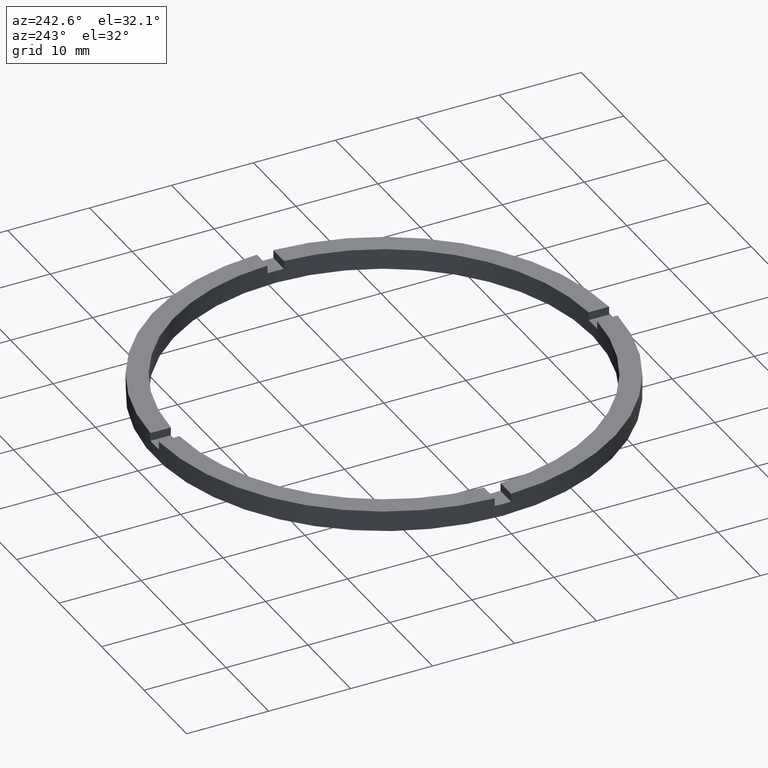
[diagram: clean part render]
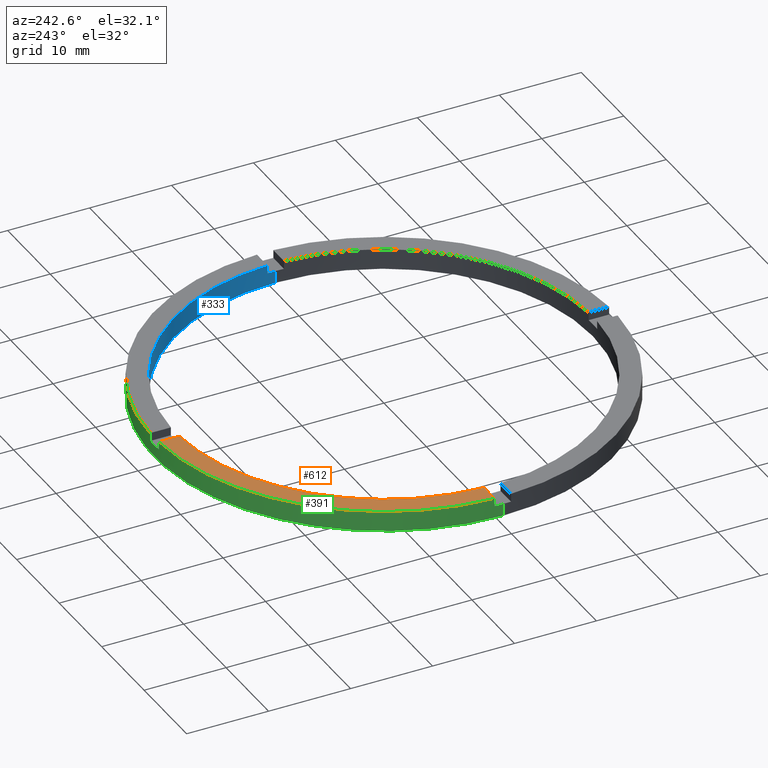
[diagram: same view with three faces highlighted in distinct colors, each labeled with its STEP entity id]
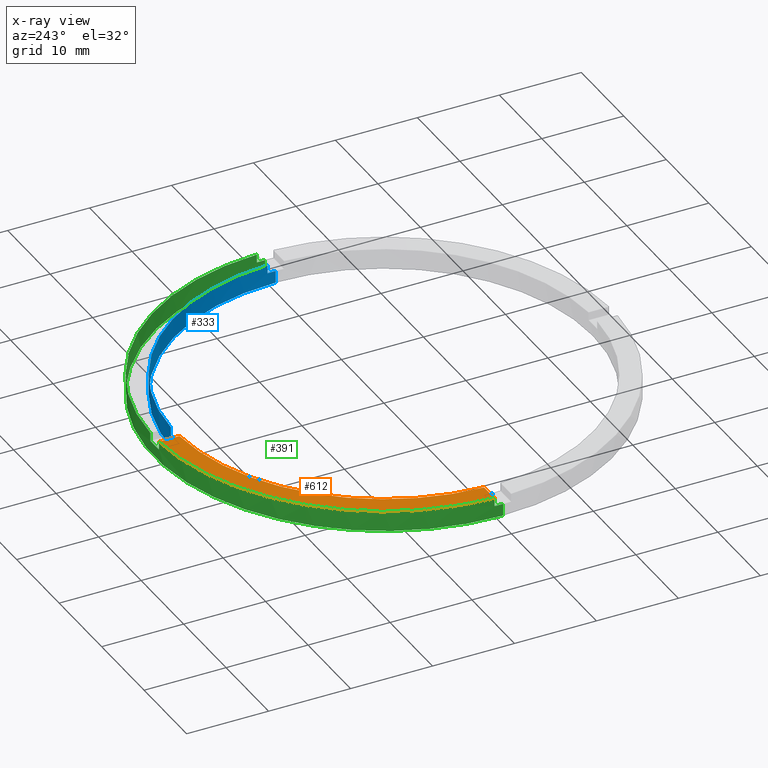
[diagram: x-ray of the same camera — body ghosted, the three highlighted faces saturated]
A machine part, auxiliary view with three faces highlighted in distinct colors.
The next image is the same camera in x-ray (body ghosted, the three faces saturated) — at least one of them is partly hidden behind the body in this view.
Their STEP definitions:

[orange] entity #612 — the highlighted planar face has unit normal (0, 0, 1).
#18 = VERTEX_POINT ( 'NONE', #433 ) ;
#42 = AXIS2_PLACEMENT_3D ( 'NONE', #439, #690, #152 ) ;
#99 = LINE ( 'NONE', #435, #623 ) ;
#103 = VERTEX_POINT ( 'NONE', #410 ) ;
#150 = EDGE_CURVE ( 'NONE', #103, #18, #99, .T. ) ;
#152 = DIRECTION ( 'NONE',  ( 1.000000000000000000, 0.000000000000000000, -0.000000000000000000 ) ) ;
#163 = EDGE_CURVE ( 'NONE', #18, #274, #635, .T. ) ;
#197 = PLANE ( 'NONE',  #42 ) ;
#274 = VERTEX_POINT ( 'NONE', #625 ) ;
#304 = DIRECTION ( 'NONE',  ( 1.000000000000000000, 0.000000000000000000, 0.000000000000000000 ) ) ;
#312 = CARTESIAN_POINT ( 'NONE',  ( -27.98213715926644696, 0.9999999999999731326, 2.500000000000000000 ) ) ;
#313 = VECTOR ( 'NONE', #588, 1000.000000000000000 ) ;
#320 = DIRECTION ( 'NONE',  ( 0.000000000000000000, 0.000000000000000000, 1.000000000000000000 ) ) ;
#337 = VERTEX_POINT ( 'NONE', #312 ) ;
#353 = ORIENTED_EDGE ( 'NONE', *, *, #163, .F. ) ;
#410 = CARTESIAN_POINT ( 'NONE',  ( -1.000000000000026423, 27.98213715926644340, 2.500000000000000000 ) ) ;
#433 = CARTESIAN_POINT ( 'NONE',  ( -1.000000000000026423, 25.48038461248181008, 2.500000000000000000 ) ) ;
#435 = CARTESIAN_POINT ( 'NONE',  ( -1.000000000000026423, 18.00000000000000355, 2.500000000000000000 ) ) ;
#439 = CARTESIAN_POINT ( 'NONE',  ( 0.000000000000000000, 0.000000000000000000, 2.500000000000000000 ) ) ;
#471 = ORIENTED_EDGE ( 'NONE', *, *, #649, .T. ) ;
#472 = ORIENTED_EDGE ( 'NONE', *, *, #150, .F. ) ;
#497 = ORIENTED_EDGE ( 'NONE', *, *, #565, .F. ) ;
#501 = CARTESIAN_POINT ( 'NONE',  ( 0.000000000000000000, 0.000000000000000000, 2.500000000000000000 ) ) ;
#551 = DIRECTION ( 'NONE',  ( 1.000000000000000000, 0.000000000000000000, 0.000000000000000000 ) ) ;
#556 = DIRECTION ( 'NONE',  ( -0.000000000000000000, -1.000000000000000000, -0.000000000000000000 ) ) ;
#565 = EDGE_CURVE ( 'NONE', #274, #337, #589, .T. ) ;
#566 = FACE_OUTER_BOUND ( 'NONE', #621, .T. ) ;
#576 = CIRCLE ( 'NONE', #628, 28.00000000000000000 ) ;
#588 = DIRECTION ( 'NONE',  ( -1.000000000000000000, -1.734723475976807341E-16, 0.000000000000000000 ) ) ;
#589 = LINE ( 'NONE', #668, #313 ) ;
#605 = DIRECTION ( 'NONE',  ( 0.000000000000000000, 0.000000000000000000, 1.000000000000000000 ) ) ;
#612 = ADVANCED_FACE ( 'NONE', ( #566 ), #197, .T. ) ;
#621 = EDGE_LOOP ( 'NONE', ( #472, #471, #497, #353 ) ) ;
#623 = VECTOR ( 'NONE', #556, 1000.000000000000000 ) ;
#625 = CARTESIAN_POINT ( 'NONE',  ( -25.48038461248181363, 0.9999999999999735767, 2.500000000000000000 ) ) ;
#628 = AXIS2_PLACEMENT_3D ( 'NONE', #633, #605, #304 ) ;
#633 = CARTESIAN_POINT ( 'NONE',  ( 0.000000000000000000, 0.000000000000000000, 2.500000000000000000 ) ) ;
#635 = CIRCLE ( 'NONE', #674, 25.50000000000000000 ) ;
#649 = EDGE_CURVE ( 'NONE', #103, #337, #576, .T. ) ;
#668 = CARTESIAN_POINT ( 'NONE',  ( -18.00000000000018474, 0.9999999999999749090, 2.500000000000000000 ) ) ;
#674 = AXIS2_PLACEMENT_3D ( 'NONE', #501, #320, #551 ) ;
#690 = DIRECTION ( 'NONE',  ( 0.000000000000000000, 0.000000000000000000, 1.000000000000000000 ) ) ;

[blue] entity #333 — the highlighted cylindrical surface (partial cylindrical patch) has radius 25.5 mm, axis along (-0, -0, -1).
#14 = EDGE_CURVE ( 'NONE', #252, #517, #709, .T. ) ;
#18 = VERTEX_POINT ( 'NONE', #433 ) ;
#19 = CARTESIAN_POINT ( 'NONE',  ( -25.50000000000000000, 0.000000000000000000, 2.500000000000000000 ) ) ;
#32 = VERTEX_POINT ( 'NONE', #650 ) ;
#35 = CARTESIAN_POINT ( 'NONE',  ( 0.9999999999999735767, 25.48038461248181363, 2.500000000000000000 ) ) ;
#57 = LINE ( 'NONE', #540, #68 ) ;
#68 = VECTOR ( 'NONE', #648, 1000.000000000000000 ) ;
#77 = CARTESIAN_POINT ( 'NONE',  ( 0.000000000000000000, 0.000000000000000000, 1.500000000000000000 ) ) ;
#78 = CARTESIAN_POINT ( 'NONE',  ( 25.50000000000000000, 3.122849337825750222E-15, 1.500000000000000000 ) ) ;
#83 = DIRECTION ( 'NONE',  ( 0.000000000000000000, 0.000000000000000000, 1.000000000000000000 ) ) ;
#89 = DIRECTION ( 'NONE',  ( -0.000000000000000000, -0.000000000000000000, -1.000000000000000000 ) ) ;
#91 = EDGE_CURVE ( 'NONE', #252, #453, #379, .T. ) ;
#97 = VERTEX_POINT ( 'NONE', #285 ) ;
#101 = CARTESIAN_POINT ( 'NONE',  ( 0.000000000000000000, 0.000000000000000000, 2.500000000000000000 ) ) ;
#112 = VECTOR ( 'NONE', #168, 1000.000000000000000 ) ;
#147 = AXIS2_PLACEMENT_3D ( 'NONE', #101, #334, #753 ) ;
#163 = EDGE_CURVE ( 'NONE', #18, #274, #635, .T. ) ;
#166 = EDGE_CURVE ( 'NONE', #706, #750, #350, .T. ) ;
#167 = DIRECTION ( 'NONE',  ( 1.000000000000000000, 0.000000000000000000, 0.000000000000000000 ) ) ;
#168 = DIRECTION ( 'NONE',  ( 0.000000000000000000, 0.000000000000000000, 1.000000000000000000 ) ) ;
#172 = CARTESIAN_POINT ( 'NONE',  ( 0.000000000000000000, 0.000000000000000000, 1.500000000000000000 ) ) ;
#182 = FACE_OUTER_BOUND ( 'NONE', #599, .T. ) ;
#187 = LINE ( 'NONE', #200, #707 ) ;
#194 = ORIENTED_EDGE ( 'NONE', *, *, #511, .F. ) ;
#200 = CARTESIAN_POINT ( 'NONE',  ( -25.48038461248181363, 0.9999999999999735767, 2.500000000000000000 ) ) ;
#201 = DIRECTION ( 'NONE',  ( 1.000000000000000000, 0.000000000000000000, 0.000000000000000000 ) ) ;
#210 = ORIENTED_EDGE ( 'NONE', *, *, #718, .F. ) ;
#211 = CARTESIAN_POINT ( 'NONE',  ( 0.000000000000000000, 0.000000000000000000, 2.500000000000000000 ) ) ;
#213 = ORIENTED_EDGE ( 'NONE', *, *, #91, .F. ) ;
#223 = CARTESIAN_POINT ( 'NONE',  ( 0.9999999999999735767, 25.48038461248181363, 2.500000000000000000 ) ) ;
#252 = VERTEX_POINT ( 'NONE', #538 ) ;
#255 = VERTEX_POINT ( 'NONE', #78 ) ;
#265 = EDGE_CURVE ( 'NONE', #255, #606, #626, .T. ) ;
#268 = DIRECTION ( 'NONE',  ( 0.000000000000000000, -0.000000000000000000, 1.000000000000000000 ) ) ;
#274 = VERTEX_POINT ( 'NONE', #625 ) ;
#277 = AXIS2_PLACEMENT_3D ( 'NONE', #77, #268, #507 ) ;
#281 = DIRECTION ( 'NONE',  ( 0.000000000000000000, 0.000000000000000000, 1.000000000000000000 ) ) ;
#283 = ORIENTED_EDGE ( 'NONE', *, *, #515, .T. ) ;
#285 = CARTESIAN_POINT ( 'NONE',  ( 25.48038461248181719, 0.9999999999998427924, 2.500000000000000000 ) ) ;
#296 = EDGE_CURVE ( 'NONE', #32, #274, #187, .T. ) ;
#307 = CIRCLE ( 'NONE', #411, 25.50000000000000000 ) ;
#316 = CARTESIAN_POINT ( 'NONE',  ( -1.000000000000026423, 25.48038461248181008, 1.500000000000000000 ) ) ;
#320 = DIRECTION ( 'NONE',  ( 0.000000000000000000, 0.000000000000000000, 1.000000000000000000 ) ) ;
#323 = VECTOR ( 'NONE', #454, 1000.000000000000000 ) ;
#333 = ADVANCED_FACE ( 'NONE', ( #182 ), #710, .F. ) ;
#334 = DIRECTION ( 'NONE',  ( -0.000000000000000000, -0.000000000000000000, -1.000000000000000000 ) ) ;
#336 = CIRCLE ( 'NONE', #684, 25.50000000000000000 ) ;
#344 = EDGE_CURVE ( 'NONE', #255, #371, #444, .T. ) ;
#346 = DIRECTION ( 'NONE',  ( 1.000000000000000000, 0.000000000000000000, 0.000000000000000000 ) ) ;
#348 = CARTESIAN_POINT ( 'NONE',  ( 25.50000000000000000, 3.122849337825750222E-15, 0.000000000000000000 ) ) ;
#350 = LINE ( 'NONE', #19, #646 ) ;
#371 = VERTEX_POINT ( 'NONE', #552 ) ;
#379 = LINE ( 'NONE', #35, #112 ) ;
#402 = DIRECTION ( 'NONE',  ( 0.000000000000000000, 0.000000000000000000, 1.000000000000000000 ) ) ;
#411 = AXIS2_PLACEMENT_3D ( 'NONE', #549, #83, #201 ) ;
#428 = CARTESIAN_POINT ( 'NONE',  ( 25.50000000000000000, 3.122849337825750222E-15, 2.500000000000000000 ) ) ;
#433 = CARTESIAN_POINT ( 'NONE',  ( -1.000000000000026423, 25.48038461248181008, 2.500000000000000000 ) ) ;
#434 = CARTESIAN_POINT ( 'NONE',  ( 25.48038461248181719, 0.9999999999998427924, 2.500000000000000000 ) ) ;
#437 = EDGE_CURVE ( 'NONE', #606, #750, #584, .T. ) ;
#444 = CIRCLE ( 'NONE', #545, 25.50000000000000000 ) ;
#450 = DIRECTION ( 'NONE',  ( 0.000000000000000000, 0.000000000000000000, 1.000000000000000000 ) ) ;
#453 = VERTEX_POINT ( 'NONE', #223 ) ;
#454 = DIRECTION ( 'NONE',  ( -0.000000000000000000, -0.000000000000000000, -1.000000000000000000 ) ) ;
#464 = AXIS2_PLACEMENT_3D ( 'NONE', #746, #450, #696 ) ;
#470 = DIRECTION ( 'NONE',  ( -0.000000000000000000, -0.000000000000000000, -1.000000000000000000 ) ) ;
#479 = CARTESIAN_POINT ( 'NONE',  ( -25.50000000000000000, 0.000000000000000000, 1.500000000000000000 ) ) ;
#501 = CARTESIAN_POINT ( 'NONE',  ( 0.000000000000000000, 0.000000000000000000, 2.500000000000000000 ) ) ;
#507 = DIRECTION ( 'NONE',  ( 1.000000000000000000, 0.000000000000000000, 0.000000000000000000 ) ) ;
#511 = EDGE_CURVE ( 'NONE', #97, #371, #575, .T. ) ;
#515 = EDGE_CURVE ( 'NONE', #32, #706, #307, .T. ) ;
#517 = VERTEX_POINT ( 'NONE', #316 ) ;
#521 = ORIENTED_EDGE ( 'NONE', *, *, #265, .F. ) ;
#530 = ORIENTED_EDGE ( 'NONE', *, *, #763, .T. ) ;
#535 = ORIENTED_EDGE ( 'NONE', *, *, #14, .T. ) ;
#538 = CARTESIAN_POINT ( 'NONE',  ( 0.9999999999999735767, 25.48038461248181363, 1.500000000000000000 ) ) ;
#540 = CARTESIAN_POINT ( 'NONE',  ( -1.000000000000026423, 25.48038461248181008, 2.500000000000000000 ) ) ;
#545 = AXIS2_PLACEMENT_3D ( 'NONE', #172, #402, #346 ) ;
#549 = CARTESIAN_POINT ( 'NONE',  ( 0.000000000000000000, 0.000000000000000000, 1.500000000000000000 ) ) ;
#551 = DIRECTION ( 'NONE',  ( 1.000000000000000000, 0.000000000000000000, 0.000000000000000000 ) ) ;
#552 = CARTESIAN_POINT ( 'NONE',  ( 25.48038461248181719, 0.9999999999998427924, 1.500000000000000000 ) ) ;
#575 = LINE ( 'NONE', #434, #323 ) ;
#584 = CIRCLE ( 'NONE', #464, 25.50000000000000000 ) ;
#599 = EDGE_LOOP ( 'NONE', ( #521, #728, #194, #530, #213, #535, #210, #720, #742, #283, #775, #733 ) ) ;
#606 = VERTEX_POINT ( 'NONE', #348 ) ;
#625 = CARTESIAN_POINT ( 'NONE',  ( -25.48038461248181363, 0.9999999999999735767, 2.500000000000000000 ) ) ;
#626 = LINE ( 'NONE', #428, #630 ) ;
#630 = VECTOR ( 'NONE', #470, 1000.000000000000000 ) ;
#635 = CIRCLE ( 'NONE', #674, 25.50000000000000000 ) ;
#646 = VECTOR ( 'NONE', #89, 1000.000000000000000 ) ;
#648 = DIRECTION ( 'NONE',  ( -0.000000000000000000, -0.000000000000000000, -1.000000000000000000 ) ) ;
#650 = CARTESIAN_POINT ( 'NONE',  ( -25.48038461248181363, 0.9999999999999735767, 1.500000000000000000 ) ) ;
#674 = AXIS2_PLACEMENT_3D ( 'NONE', #501, #320, #551 ) ;
#684 = AXIS2_PLACEMENT_3D ( 'NONE', #211, #749, #167 ) ;
#696 = DIRECTION ( 'NONE',  ( 1.000000000000000000, 0.000000000000000000, 0.000000000000000000 ) ) ;
#706 = VERTEX_POINT ( 'NONE', #479 ) ;
#707 = VECTOR ( 'NONE', #281, 1000.000000000000000 ) ;
#709 = CIRCLE ( 'NONE', #277, 25.50000000000000000 ) ;
#710 = CYLINDRICAL_SURFACE ( 'NONE', #147, 25.50000000000000000 ) ;
#718 = EDGE_CURVE ( 'NONE', #18, #517, #57, .T. ) ;
#720 = ORIENTED_EDGE ( 'NONE', *, *, #163, .T. ) ;
#728 = ORIENTED_EDGE ( 'NONE', *, *, #344, .T. ) ;
#733 = ORIENTED_EDGE ( 'NONE', *, *, #437, .F. ) ;
#734 = CARTESIAN_POINT ( 'NONE',  ( -25.50000000000000000, 0.000000000000000000, 0.000000000000000000 ) ) ;
#742 = ORIENTED_EDGE ( 'NONE', *, *, #296, .F. ) ;
#746 = CARTESIAN_POINT ( 'NONE',  ( 0.000000000000000000, 0.000000000000000000, 0.000000000000000000 ) ) ;
#749 = DIRECTION ( 'NONE',  ( 0.000000000000000000, 0.000000000000000000, 1.000000000000000000 ) ) ;
#750 = VERTEX_POINT ( 'NONE', #734 ) ;
#753 = DIRECTION ( 'NONE',  ( -1.000000000000000000, 0.000000000000000000, 0.000000000000000000 ) ) ;
#763 = EDGE_CURVE ( 'NONE', #97, #453, #336, .T. ) ;
#775 = ORIENTED_EDGE ( 'NONE', *, *, #166, .T. ) ;

[green] entity #391 — the highlighted cylindrical surface (partial cylindrical patch) has radius 28 mm, axis along (-0, -0, -1).
#6 = CARTESIAN_POINT ( 'NONE',  ( 0.000000000000000000, 0.000000000000000000, 2.500000000000000000 ) ) ;
#10 = DIRECTION ( 'NONE',  ( 0.000000000000000000, 0.000000000000000000, 1.000000000000000000 ) ) ;
#11 = CARTESIAN_POINT ( 'NONE',  ( 0.000000000000000000, 0.000000000000000000, 1.500000000000000000 ) ) ;
#13 = EDGE_CURVE ( 'NONE', #81, #337, #721, .T. ) ;
#21 = AXIS2_PLACEMENT_3D ( 'NONE', #50, #244, #193 ) ;
#23 = CARTESIAN_POINT ( 'NONE',  ( 0.9999999999999735767, 27.98213715926644696, 2.500000000000000000 ) ) ;
#28 = CARTESIAN_POINT ( 'NONE',  ( 27.98213715926645051, 0.9999999999998430145, 1.500000000000000000 ) ) ;
#39 = CARTESIAN_POINT ( 'NONE',  ( 0.000000000000000000, 0.000000000000000000, 2.500000000000000000 ) ) ;
#44 = VECTOR ( 'NONE', #462, 1000.000000000000000 ) ;
#48 = CIRCLE ( 'NONE', #664, 28.00000000000000000 ) ;
#50 = CARTESIAN_POINT ( 'NONE',  ( 0.000000000000000000, 0.000000000000000000, 1.500000000000000000 ) ) ;
#81 = VERTEX_POINT ( 'NONE', #117 ) ;
#103 = VERTEX_POINT ( 'NONE', #410 ) ;
#117 = CARTESIAN_POINT ( 'NONE',  ( -27.98213715926644696, 0.9999999999999731326, 1.500000000000000000 ) ) ;
#123 = CIRCLE ( 'NONE', #352, 28.00000000000000000 ) ;
#131 = LINE ( 'NONE', #425, #359 ) ;
#132 = DIRECTION ( 'NONE',  ( 0.000000000000000000, 0.000000000000000000, 1.000000000000000000 ) ) ;
#135 = DIRECTION ( 'NONE',  ( -0.000000000000000000, -0.000000000000000000, -1.000000000000000000 ) ) ;
#137 = CARTESIAN_POINT ( 'NONE',  ( 28.00000000000000000, 3.429011037612589276E-15, 2.500000000000000000 ) ) ;
#144 = CARTESIAN_POINT ( 'NONE',  ( -28.00000000000000000, 0.000000000000000000, 1.500000000000000000 ) ) ;
#145 = EDGE_CURVE ( 'NONE', #222, #769, #382, .T. ) ;
#173 = EDGE_CURVE ( 'NONE', #512, #769, #123, .T. ) ;
#175 = DIRECTION ( 'NONE',  ( -1.000000000000000000, 0.000000000000000000, 0.000000000000000000 ) ) ;
#185 = EDGE_CURVE ( 'NONE', #222, #282, #377, .T. ) ;
#193 = DIRECTION ( 'NONE',  ( 1.000000000000000000, 0.000000000000000000, 0.000000000000000000 ) ) ;
#206 = EDGE_CURVE ( 'NONE', #236, #543, #131, .T. ) ;
#218 = ORIENTED_EDGE ( 'NONE', *, *, #185, .F. ) ;
#220 = EDGE_LOOP ( 'NONE', ( #770, #239, #341, #376, #755, #610, #729, #475, #218, #754, #489, #233 ) ) ;
#222 = VERTEX_POINT ( 'NONE', #546 ) ;
#230 = EDGE_CURVE ( 'NONE', #478, #458, #616, .T. ) ;
#233 = ORIENTED_EDGE ( 'NONE', *, *, #670, .T. ) ;
#236 = VERTEX_POINT ( 'NONE', #144 ) ;
#239 = ORIENTED_EDGE ( 'NONE', *, *, #592, .T. ) ;
#244 = DIRECTION ( 'NONE',  ( 0.000000000000000000, -0.000000000000000000, 1.000000000000000000 ) ) ;
#266 = DIRECTION ( 'NONE',  ( 1.000000000000000000, 0.000000000000000000, 0.000000000000000000 ) ) ;
#273 = AXIS2_PLACEMENT_3D ( 'NONE', #11, #611, #724 ) ;
#282 = VERTEX_POINT ( 'NONE', #743 ) ;
#304 = DIRECTION ( 'NONE',  ( 1.000000000000000000, 0.000000000000000000, 0.000000000000000000 ) ) ;
#308 = LINE ( 'NONE', #137, #44 ) ;
#309 = CIRCLE ( 'NONE', #514, 28.00000000000000000 ) ;
#310 = DIRECTION ( 'NONE',  ( -0.000000000000000000, -0.000000000000000000, -1.000000000000000000 ) ) ;
#312 = CARTESIAN_POINT ( 'NONE',  ( -27.98213715926644696, 0.9999999999999731326, 2.500000000000000000 ) ) ;
#315 = LINE ( 'NONE', #654, #326 ) ;
#318 = DIRECTION ( 'NONE',  ( 0.000000000000000000, 0.000000000000000000, 1.000000000000000000 ) ) ;
#322 = VECTOR ( 'NONE', #531, 1000.000000000000000 ) ;
#326 = VECTOR ( 'NONE', #310, 1000.000000000000000 ) ;
#337 = VERTEX_POINT ( 'NONE', #312 ) ;
#341 = ORIENTED_EDGE ( 'NONE', *, *, #677, .T. ) ;
#352 = AXIS2_PLACEMENT_3D ( 'NONE', #6, #778, #730 ) ;
#358 = VERTEX_POINT ( 'NONE', #548 ) ;
#359 = VECTOR ( 'NONE', #601, 1000.000000000000000 ) ;
#364 = VECTOR ( 'NONE', #662, 1000.000000000000000 ) ;
#376 = ORIENTED_EDGE ( 'NONE', *, *, #206, .F. ) ;
#377 = CIRCLE ( 'NONE', #21, 28.00000000000000000 ) ;
#382 = LINE ( 'NONE', #572, #364 ) ;
#390 = CYLINDRICAL_SURFACE ( 'NONE', #585, 28.00000000000000000 ) ;
#391 = ADVANCED_FACE ( 'NONE', ( #666 ), #390, .T. ) ;
#400 = CARTESIAN_POINT ( 'NONE',  ( 0.000000000000000000, 0.000000000000000000, 0.000000000000000000 ) ) ;
#410 = CARTESIAN_POINT ( 'NONE',  ( -1.000000000000026423, 27.98213715926644340, 2.500000000000000000 ) ) ;
#425 = CARTESIAN_POINT ( 'NONE',  ( -28.00000000000000000, 0.000000000000000000, 2.500000000000000000 ) ) ;
#445 = VECTOR ( 'NONE', #10, 1000.000000000000000 ) ;
#449 = EDGE_CURVE ( 'NONE', #81, #236, #309, .T. ) ;
#458 = VERTEX_POINT ( 'NONE', #28 ) ;
#462 = DIRECTION ( 'NONE',  ( -0.000000000000000000, -0.000000000000000000, -1.000000000000000000 ) ) ;
#475 = ORIENTED_EDGE ( 'NONE', *, *, #542, .T. ) ;
#478 = VERTEX_POINT ( 'NONE', #699 ) ;
#482 = CARTESIAN_POINT ( 'NONE',  ( -27.98213715926644696, 0.9999999999999731326, 2.500000000000000000 ) ) ;
#489 = ORIENTED_EDGE ( 'NONE', *, *, #173, .F. ) ;
#496 = CARTESIAN_POINT ( 'NONE',  ( 0.000000000000000000, 0.000000000000000000, 1.500000000000000000 ) ) ;
#512 = VERTEX_POINT ( 'NONE', #663 ) ;
#514 = AXIS2_PLACEMENT_3D ( 'NONE', #496, #132, #567 ) ;
#531 = DIRECTION ( 'NONE',  ( -0.000000000000000000, -0.000000000000000000, -1.000000000000000000 ) ) ;
#542 = EDGE_CURVE ( 'NONE', #103, #282, #560, .T. ) ;
#543 = VERTEX_POINT ( 'NONE', #768 ) ;
#546 = CARTESIAN_POINT ( 'NONE',  ( 0.9999999999999735767, 27.98213715926644696, 1.500000000000000000 ) ) ;
#548 = CARTESIAN_POINT ( 'NONE',  ( 28.00000000000000000, 3.429011037612589276E-15, 0.000000000000000000 ) ) ;
#560 = LINE ( 'NONE', #692, #322 ) ;
#567 = DIRECTION ( 'NONE',  ( 1.000000000000000000, 0.000000000000000000, 0.000000000000000000 ) ) ;
#572 = CARTESIAN_POINT ( 'NONE',  ( 0.9999999999999735767, 27.98213715926644696, 2.500000000000000000 ) ) ;
#576 = CIRCLE ( 'NONE', #628, 28.00000000000000000 ) ;
#585 = AXIS2_PLACEMENT_3D ( 'NONE', #39, #135, #175 ) ;
#592 = EDGE_CURVE ( 'NONE', #478, #358, #308, .T. ) ;
#601 = DIRECTION ( 'NONE',  ( -0.000000000000000000, -0.000000000000000000, -1.000000000000000000 ) ) ;
#605 = DIRECTION ( 'NONE',  ( 0.000000000000000000, 0.000000000000000000, 1.000000000000000000 ) ) ;
#610 = ORIENTED_EDGE ( 'NONE', *, *, #13, .T. ) ;
#611 = DIRECTION ( 'NONE',  ( 0.000000000000000000, 0.000000000000000000, 1.000000000000000000 ) ) ;
#616 = CIRCLE ( 'NONE', #273, 28.00000000000000000 ) ;
#628 = AXIS2_PLACEMENT_3D ( 'NONE', #633, #605, #304 ) ;
#633 = CARTESIAN_POINT ( 'NONE',  ( 0.000000000000000000, 0.000000000000000000, 2.500000000000000000 ) ) ;
#649 = EDGE_CURVE ( 'NONE', #103, #337, #576, .T. ) ;
#654 = CARTESIAN_POINT ( 'NONE',  ( 27.98213715926645051, 0.9999999999998430145, 2.500000000000000000 ) ) ;
#662 = DIRECTION ( 'NONE',  ( 0.000000000000000000, 0.000000000000000000, 1.000000000000000000 ) ) ;
#663 = CARTESIAN_POINT ( 'NONE',  ( 27.98213715926645051, 0.9999999999998430145, 2.500000000000000000 ) ) ;
#664 = AXIS2_PLACEMENT_3D ( 'NONE', #400, #318, #266 ) ;
#666 = FACE_OUTER_BOUND ( 'NONE', #220, .T. ) ;
#670 = EDGE_CURVE ( 'NONE', #512, #458, #315, .T. ) ;
#677 = EDGE_CURVE ( 'NONE', #358, #543, #48, .T. ) ;
#692 = CARTESIAN_POINT ( 'NONE',  ( -1.000000000000026423, 27.98213715926644340, 2.500000000000000000 ) ) ;
#699 = CARTESIAN_POINT ( 'NONE',  ( 28.00000000000000000, 3.429011037612589276E-15, 1.500000000000000000 ) ) ;
#721 = LINE ( 'NONE', #482, #445 ) ;
#724 = DIRECTION ( 'NONE',  ( 1.000000000000000000, 0.000000000000000000, 0.000000000000000000 ) ) ;
#729 = ORIENTED_EDGE ( 'NONE', *, *, #649, .F. ) ;
#730 = DIRECTION ( 'NONE',  ( 1.000000000000000000, 0.000000000000000000, 0.000000000000000000 ) ) ;
#743 = CARTESIAN_POINT ( 'NONE',  ( -1.000000000000026423, 27.98213715926644340, 1.500000000000000000 ) ) ;
#754 = ORIENTED_EDGE ( 'NONE', *, *, #145, .T. ) ;
#755 = ORIENTED_EDGE ( 'NONE', *, *, #449, .F. ) ;
#768 = CARTESIAN_POINT ( 'NONE',  ( -28.00000000000000000, 0.000000000000000000, 0.000000000000000000 ) ) ;
#769 = VERTEX_POINT ( 'NONE', #23 ) ;
#770 = ORIENTED_EDGE ( 'NONE', *, *, #230, .F. ) ;
#778 = DIRECTION ( 'NONE',  ( 0.000000000000000000, 0.000000000000000000, 1.000000000000000000 ) ) ;